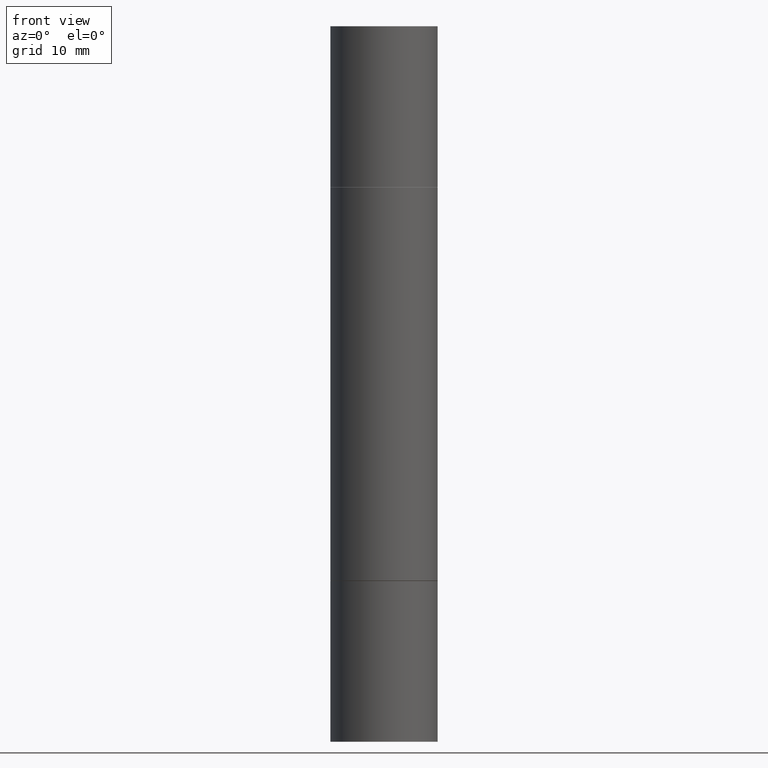
[diagram: clean part render]
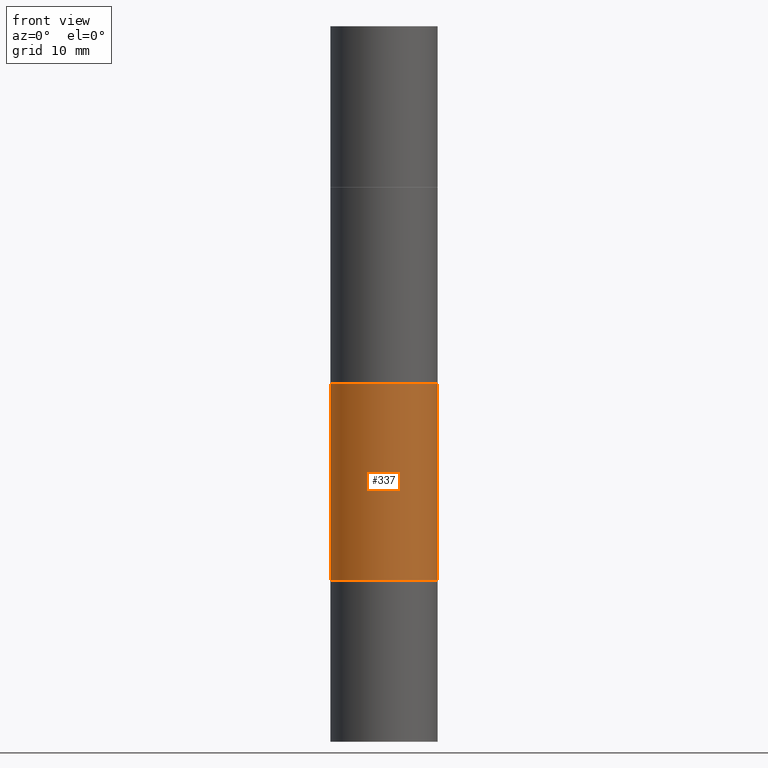
[diagram: same view with one face highlighted and labeled with its STEP entity id]
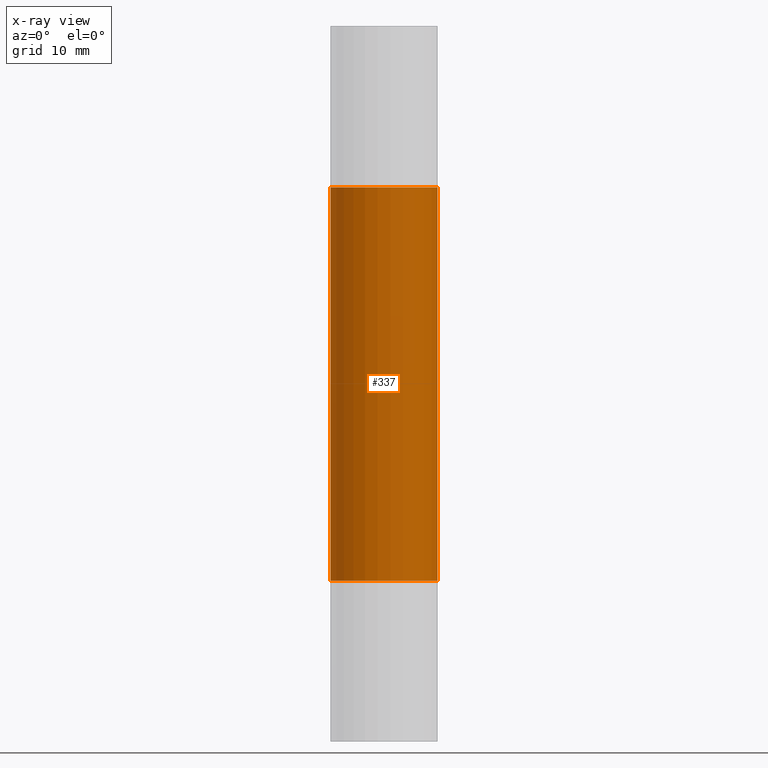
[diagram: x-ray of the same camera — body ghosted, the highlighted face saturated]
A machine part, front view. The second image highlights one B-rep face of the part: STEP entity #337.
The next image is the same camera in x-ray: the body ghosted, the highlighted face saturated — about 0% of this face is hidden behind the body in this view.
In plain terms, the highlighted cylindrical surface (partial cylindrical patch) has radius 4.7625 mm, axis along (-0, -0, -1).
Its self-contained STEP definition (entity closure, byte-faithful):
#39 = AXIS2_PLACEMENT_3D ( 'NONE', #530, #151, #667 ) ;
#42 = ORIENTED_EDGE ( 'NONE', *, *, #554, .F. ) ;
#47 = CARTESIAN_POINT ( 'NONE',  ( -0.1875000000000000278, -6.783925862357143136E-16, -0.5629999999999997229 ) ) ;
#51 = AXIS2_PLACEMENT_3D ( 'NONE', #384, #166, #226 ) ;
#52 = CIRCLE ( 'NONE', #613, 0.1875000000000000278 ) ;
#106 = ORIENTED_EDGE ( 'NONE', *, *, #643, .F. ) ;
#151 = DIRECTION ( 'NONE',  ( -2.445468806185136597E-29, -3.492890411551752677E-15, -1.000000000000000000 ) ) ;
#166 = DIRECTION ( 'NONE',  ( -2.445468806185136597E-29, 3.491481338843145583E-15, 1.000000000000000000 ) ) ;
#177 = LINE ( 'NONE', #658, #674 ) ;
#196 = CARTESIAN_POINT ( 'NONE',  ( 0.1875000000000000278, -8.072304855405348046E-15, -1.936999999999999833 ) ) ;
#220 = EDGE_CURVE ( 'NONE', #635, #275, #672, .T. ) ;
#226 = DIRECTION ( 'NONE',  ( 1.000000000000000000, -6.982962677686266711E-15, 0.000000000000000000 ) ) ;
#243 = CARTESIAN_POINT ( 'NONE',  ( -0.1874999999999999722, -3.078008298971767937E-15, -1.936999999999999833 ) ) ;
#271 = LINE ( 'NONE', #473, #361 ) ;
#275 = VERTEX_POINT ( 'NONE', #196 ) ;
#319 = FACE_OUTER_BOUND ( 'NONE', #483, .T. ) ;
#337 = ADVANCED_FACE ( 'NONE', ( #319 ), #528, .T. ) ;
#361 = VECTOR ( 'NONE', #581, 39.37007874015748143 ) ;
#384 = CARTESIAN_POINT ( 'NONE',  ( 4.736873077580609355E-29, -6.762999353339172249E-15, -1.936999999999999833 ) ) ;
#396 = DIRECTION ( 'NONE',  ( -2.445468806185136877E-29, -3.492890411551753071E-15, -1.000000000000000000 ) ) ;
#411 = VERTEX_POINT ( 'NONE', #463 ) ;
#444 = DIRECTION ( 'NONE',  ( 2.445468806185136597E-29, 3.492890411551752677E-15, 1.000000000000000000 ) ) ;
#446 = EDGE_CURVE ( 'NONE', #499, #635, #271, .T. ) ;
#463 = CARTESIAN_POINT ( 'NONE',  ( 0.1875000000000000278, -3.274041462884052574E-15, -0.5629999999999997229 ) ) ;
#473 = CARTESIAN_POINT ( 'NONE',  ( -0.1874999999999999167, -7.444121313411459473E-15, -2.499999999999999556 ) ) ;
#483 = EDGE_LOOP ( 'NONE', ( #42, #677, #679, #106 ) ) ;
#499 = VERTEX_POINT ( 'NONE', #47 ) ;
#511 = DIRECTION ( 'NONE',  ( 1.000000000000000000, -6.982962677686266711E-15, 0.000000000000000000 ) ) ;
#528 = CYLINDRICAL_SURFACE ( 'NONE', #39, 0.1874999999999999167 ) ;
#530 = CARTESIAN_POINT ( 'NONE',  ( 0.000000000000000000, -8.730464687993621641E-15, -2.499999999999999556 ) ) ;
#554 = EDGE_CURVE ( 'NONE', #499, #411, #52, .T. ) ;
#561 = CARTESIAN_POINT ( 'NONE',  ( 4.736873077580609355E-29, -1.964735960817877172E-15, -0.5629999999999997229 ) ) ;
#581 = DIRECTION ( 'NONE',  ( -2.445468806185136877E-29, -3.492890411551753071E-15, -1.000000000000000000 ) ) ;
#613 = AXIS2_PLACEMENT_3D ( 'NONE', #561, #444, #511 ) ;
#635 = VERTEX_POINT ( 'NONE', #243 ) ;
#643 = EDGE_CURVE ( 'NONE', #411, #275, #177, .T. ) ;
#658 = CARTESIAN_POINT ( 'NONE',  ( 0.1874999999999999167, -1.003977019005979665E-14, -2.499999999999999556 ) ) ;
#667 = DIRECTION ( 'NONE',  ( 1.000000000000000000, -6.982962677686270655E-15, 0.000000000000000000 ) ) ;
#672 = CIRCLE ( 'NONE', #51, 0.1875000000000000278 ) ;
#674 = VECTOR ( 'NONE', #396, 39.37007874015748143 ) ;
#677 = ORIENTED_EDGE ( 'NONE', *, *, #446, .T. ) ;
#679 = ORIENTED_EDGE ( 'NONE', *, *, #220, .T. ) ;